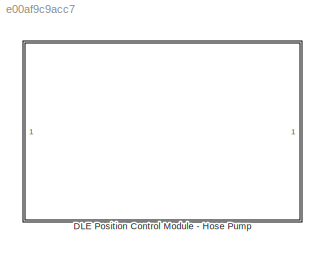
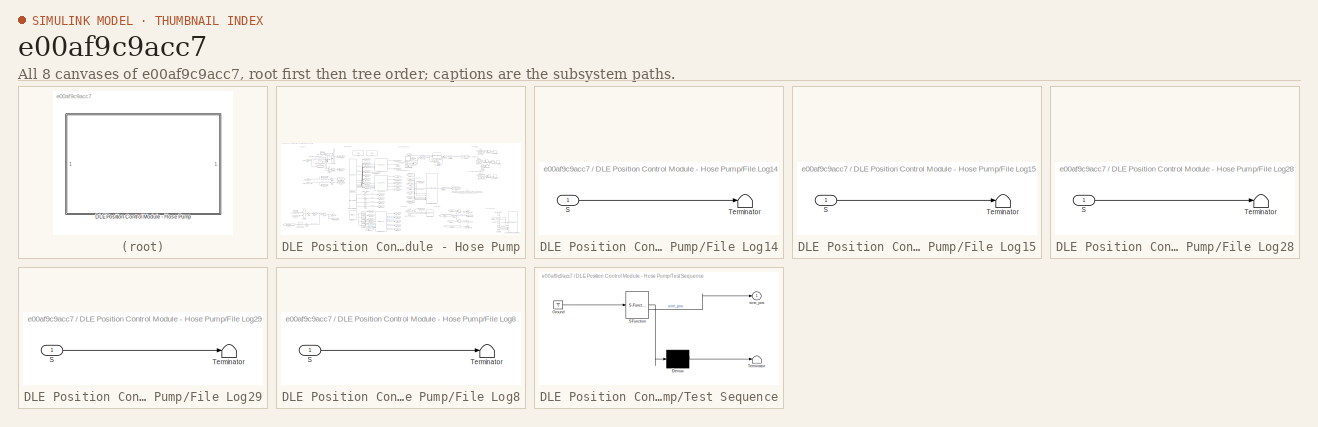
[diagram: thumbnail index - all 8 canvases of the model, root first then tree order]
MODEL slx_e00af9c9acc7
KIND library
CONFIG AbsTol = auto
CONFIG EnableMultiTasking = off
CONFIG FixedStep = auto
CONFIG MaxStep = auto
CONFIG MinStep = auto
CONFIG RelTol = 1e-3
CONFIG SampleTimeConstraint = Unconstrained
CONFIG SolverName = VariableStepAuto
CONFIG StartTime = 0.0
CONFIG StopTime = 10.0
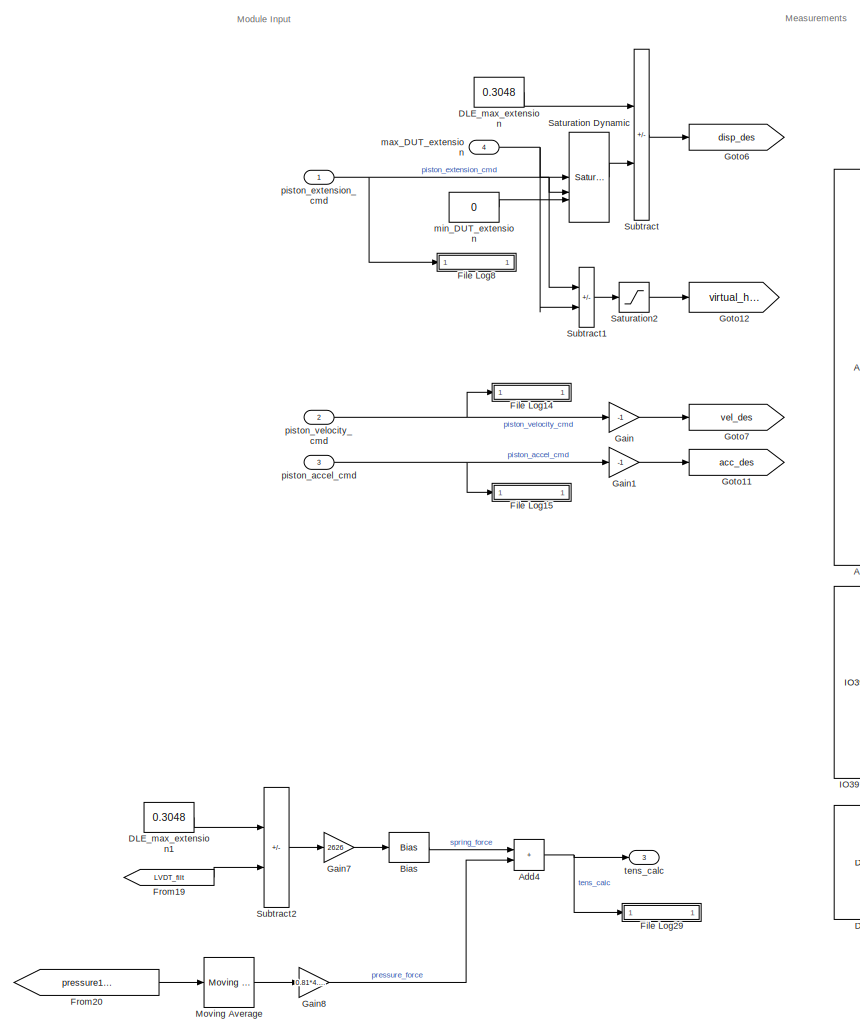
[diagram: DLE Position Control Module - Hose Pump - part 1/5, left side, full height]
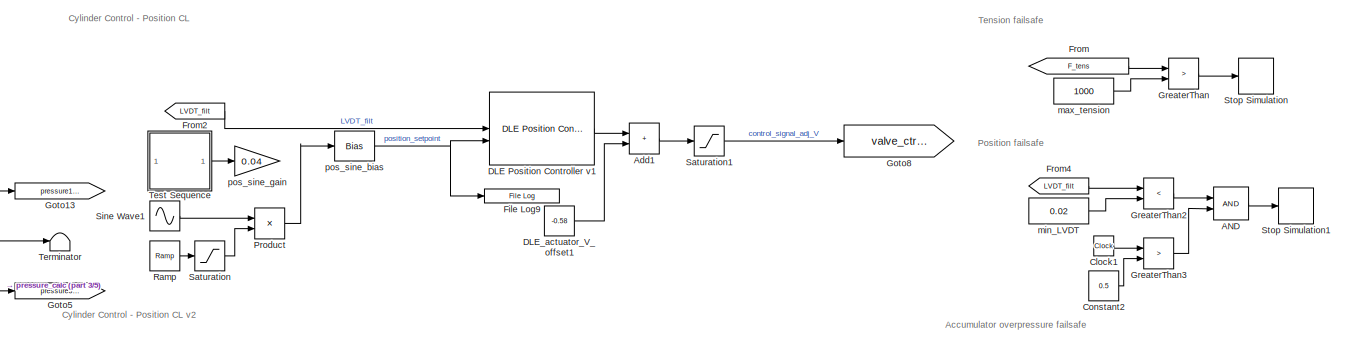
[diagram: DLE Position Control Module - Hose Pump - part 2/5, top right region]
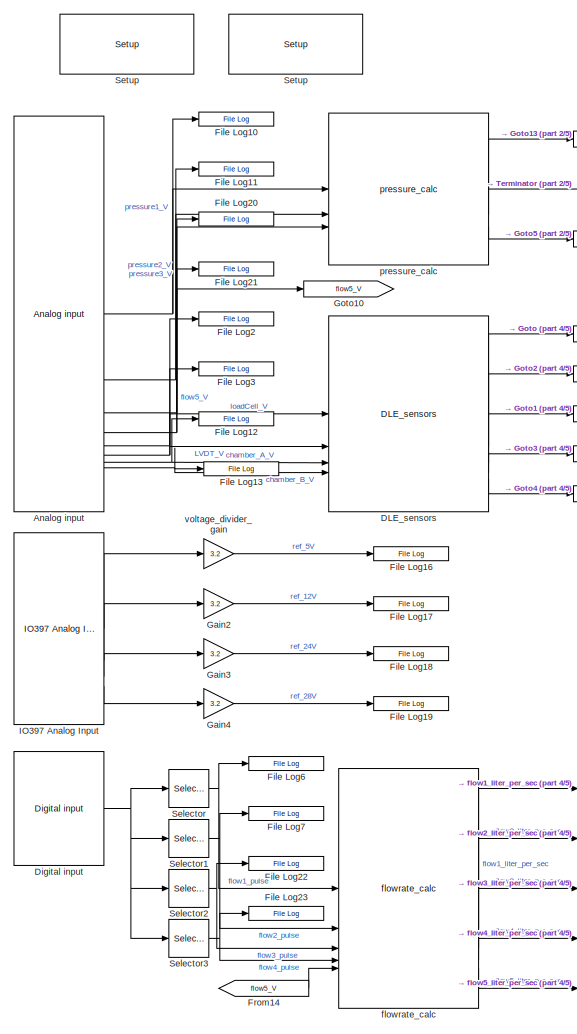
[diagram: DLE Position Control Module - Hose Pump - part 3/5, center side, full height]
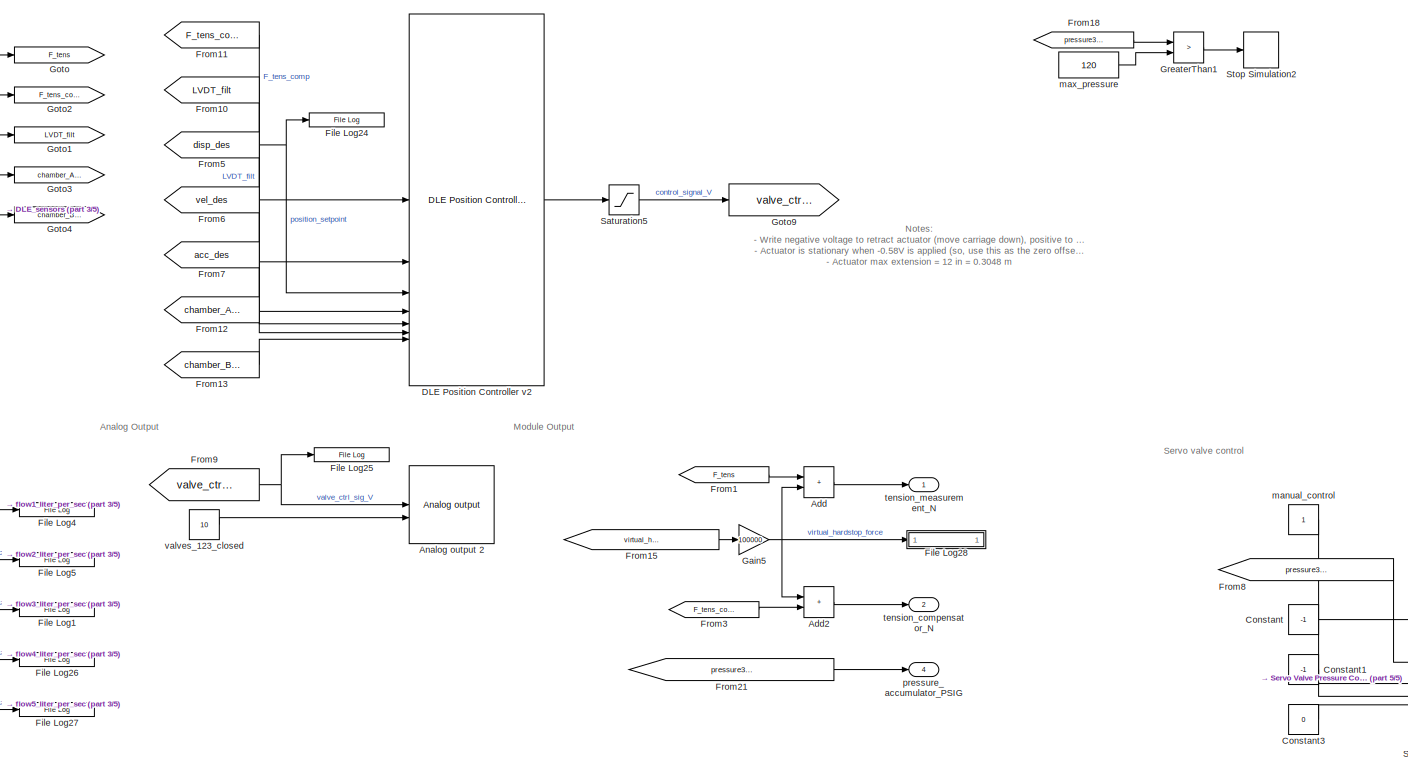
[diagram: DLE Position Control Module - Hose Pump - part 4/5, middle right region]
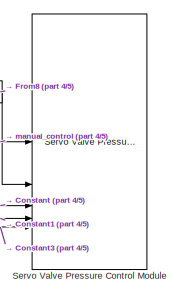
[diagram: DLE Position Control Module - Hose Pump - part 5/5, bottom right region]
BLOCK [SubSystem] DLE Position Control Module - Hose Pump
BLOCK [Logic] DLE Position Control Module - Hose Pump/AND
  AllPortsSameDT = off
  OutDataTypeStr = boolean
BLOCK [Sum] DLE Position Control Module - Hose Pump/Add
  IconShape = rectangular
BLOCK [Sum] DLE Position Control Module - Hose Pump/Add1
  Commented = on
  IconShape = rectangular
BLOCK [Sum] DLE Position Control Module - Hose Pump/Add2
  IconShape = rectangular
BLOCK [Sum] DLE Position Control Module - Hose Pump/Add4
  Commented = on
  IconShape = rectangular
BLOCK [Reference] DLE Position Control Module - Hose Pump/Analog input   REF=speedgoatlib_IO191/Analog input 
  SourceBlock = speedgoatlib_IO191/Analog input
  SourceProductName = IO191
  SourceType = ad_IO191
BLOCK [Reference] DLE Position Control Module - Hose Pump/Analog output 2  REF=speedgoatlib_IO191/Analog output 
  SourceBlock = speedgoatlib_IO191/Analog output
  SourceProductName = IO191
  SourceType = da_IO191
BLOCK [Bias] DLE Position Control Module - Hose Pump/Bias
  Bias = 185
  Commented = on
  SaturateOnIntegerOverflow = off
BLOCK [Clock] DLE Position Control Module - Hose Pump/Clock1
BLOCK [Constant] DLE Position Control Module - Hose Pump/Constant
  Commented = on
  Value = -1
BLOCK [Constant] DLE Position Control Module - Hose Pump/Constant1
  Commented = on
  Value = -1
BLOCK [Constant] DLE Position Control Module - Hose Pump/Constant2
  Value = 0.5
BLOCK [Constant] DLE Position Control Module - Hose Pump/Constant3
  Commented = on
  Value = 0
BLOCK [Reference] DLE Position Control Module - Hose Pump/DLE Position Controller v1  REF=DLE_position_controller_v1/DLE Position Controller v1
  Commented = on
  SourceBlock = DLE_position_controller_v1/DLE Position Controller v1
  SourceType = SubSystem
BLOCK [Reference] DLE Position Control Module - Hose Pump/DLE Position Controller v2  REF=DLE_position_controller_v2/DLE Position Controller v2
  SourceBlock = DLE_position_controller_v2/DLE Position Controller v2
  SourceType = SubSystem
BLOCK [Constant] DLE Position Control Module - Hose Pump/DLE_actuator_V_offset1
  Commented = on
  Value = -0.58
BLOCK [Constant] DLE Position Control Module - Hose Pump/DLE_max_extension
  Value = 0.3048
BLOCK [Constant] DLE Position Control Module - Hose Pump/DLE_max_extension1
  Commented = on
  Value = 0.3048
BLOCK [Reference] DLE Position Control Module - Hose Pump/DLE_sensors  REF=sensor_conversion_blocks/DLE_sensors  (lib defined in slx_31147057ccca)
  SourceBlock = sensor_conversion_blocks/DLE_sensors
  SourceType = SubSystem
BLOCK [Reference] DLE Position Control Module - Hose Pump/Digital input   REF=speedgoatlib_IO191/Digital input 
  SourceBlock = speedgoatlib_IO191/Digital input
  SourceProductName = IO191
  SourceType = di_IO191
BLOCK [Reference] DLE Position Control Module - Hose Pump/File Log1  REF=slrealtimeloglib/File Log
  SourceBlock = slrealtimeloglib/File Log
  SourceType = slrealtimeloggingblock
BLOCK [Reference] DLE Position Control Module - Hose Pump/File Log10  REF=slrealtimeloglib/File Log
  SourceBlock = slrealtimeloglib/File Log
  SourceType = slrealtimeloggingblock
BLOCK [Reference] DLE Position Control Module - Hose Pump/File Log11  REF=slrealtimeloglib/File Log
  SourceBlock = slrealtimeloglib/File Log
  SourceType = slrealtimeloggingblock
BLOCK [Reference] DLE Position Control Module - Hose Pump/File Log12  REF=slrealtimeloglib/File Log
  SourceBlock = slrealtimeloglib/File Log
  SourceType = slrealtimeloggingblock
BLOCK [Reference] DLE Position Control Module - Hose Pump/File Log13  REF=slrealtimeloglib/File Log
  SourceBlock = slrealtimeloglib/File Log
  SourceType = slrealtimeloggingblock
BLOCK [SubSystem] DLE Position Control Module - Hose Pump/File Log14
  MaskHideContents = on
BLOCK [Inport] DLE Position Control Module - Hose Pump/File Log14/S
BLOCK [Terminator] DLE Position Control Module - Hose Pump/File Log14/Terminator
BLOCK [SubSystem] DLE Position Control Module - Hose Pump/File Log15
  MaskHideContents = on
BLOCK [Inport] DLE Position Control Module - Hose Pump/File Log15/S
BLOCK [Terminator] DLE Position Control Module - Hose Pump/File Log15/Terminator
BLOCK [Reference] DLE Position Control Module - Hose Pump/File Log16  REF=slrealtimeloglib/File Log
  SourceBlock = slrealtimeloglib/File Log
  SourceType = slrealtimeloggingblock
BLOCK [Reference] DLE Position Control Module - Hose Pump/File Log17  REF=slrealtimeloglib/File Log
  SourceBlock = slrealtimeloglib/File Log
  SourceType = slrealtimeloggingblock
BLOCK [Reference] DLE Position Control Module - Hose Pump/File Log18  REF=slrealtimeloglib/File Log
  SourceBlock = slrealtimeloglib/File Log
  SourceType = slrealtimeloggingblock
BLOCK [Reference] DLE Position Control Module - Hose Pump/File Log19  REF=slrealtimeloglib/File Log
  SourceBlock = slrealtimeloglib/File Log
  SourceType = slrealtimeloggingblock
BLOCK [Reference] DLE Position Control Module - Hose Pump/File Log2  REF=slrealtimeloglib/File Log
  SourceBlock = slrealtimeloglib/File Log
  SourceType = slrealtimeloggingblock
BLOCK [Reference] DLE Position Control Module - Hose Pump/File Log20  REF=slrealtimeloglib/File Log
  SourceBlock = slrealtimeloglib/File Log
  SourceType = slrealtimeloggingblock
BLOCK [Reference] DLE Position Control Module - Hose Pump/File Log21  REF=slrealtimeloglib/File Log
  SourceBlock = slrealtimeloglib/File Log
  SourceType = slrealtimeloggingblock
BLOCK [Reference] DLE Position Control Module - Hose Pump/File Log22  REF=slrealtimeloglib/File Log
  SourceBlock = slrealtimeloglib/File Log
  SourceType = slrealtimeloggingblock
BLOCK [Reference] DLE Position Control Module - Hose Pump/File Log23  REF=slrealtimeloglib/File Log
  SourceBlock = slrealtimeloglib/File Log
  SourceType = slrealtimeloggingblock
BLOCK [Reference] DLE Position Control Module - Hose Pump/File Log24  REF=slrealtimeloglib/File Log
  SourceBlock = slrealtimeloglib/File Log
  SourceType = slrealtimeloggingblock
BLOCK [Reference] DLE Position Control Module - Hose Pump/File Log25  REF=slrealtimeloglib/File Log
  SourceBlock = slrealtimeloglib/File Log
  SourceType = slrealtimeloggingblock
BLOCK [Reference] DLE Position Control Module - Hose Pump/File Log26  REF=slrealtimeloglib/File Log
  SourceBlock = slrealtimeloglib/File Log
  SourceType = slrealtimeloggingblock
BLOCK [Reference] DLE Position Control Module - Hose Pump/File Log27  REF=slrealtimeloglib/File Log
  SourceBlock = slrealtimeloglib/File Log
  SourceType = slrealtimeloggingblock
BLOCK [SubSystem] DLE Position Control Module - Hose Pump/File Log28
  MaskHideContents = on
BLOCK [Inport] DLE Position Control Module - Hose Pump/File Log28/S
BLOCK [Terminator] DLE Position Control Module - Hose Pump/File Log28/Terminator
BLOCK [SubSystem] DLE Position Control Module - Hose Pump/File Log29
  Commented = on
  MaskHideContents = on
BLOCK [Inport] DLE Position Control Module - Hose Pump/File Log29/S
BLOCK [Terminator] DLE Position Control Module - Hose Pump/File Log29/Terminator
BLOCK [Reference] DLE Position Control Module - Hose Pump/File Log3  REF=slrealtimeloglib/File Log
  SourceBlock = slrealtimeloglib/File Log
  SourceType = slrealtimeloggingblock
BLOCK [Reference] DLE Position Control Module - Hose Pump/File Log4  REF=slrealtimeloglib/File Log
  SourceBlock = slrealtimeloglib/File Log
  SourceType = slrealtimeloggingblock
BLOCK [Reference] DLE Position Control Module - Hose Pump/File Log5  REF=slrealtimeloglib/File Log
  SourceBlock = slrealtimeloglib/File Log
  SourceType = slrealtimeloggingblock
BLOCK [Reference] DLE Position Control Module - Hose Pump/File Log6  REF=slrealtimeloglib/File Log
  SourceBlock = slrealtimeloglib/File Log
  SourceType = slrealtimeloggingblock
BLOCK [Reference] DLE Position Control Module - Hose Pump/File Log7  REF=slrealtimeloglib/File Log
  SourceBlock = slrealtimeloglib/File Log
  SourceType = slrealtimeloggingblock
BLOCK [SubSystem] DLE Position Control Module - Hose Pump/File Log8
  MaskHideContents = on
BLOCK [Inport] DLE Position Control Module - Hose Pump/File Log8/S
BLOCK [Terminator] DLE Position Control Module - Hose Pump/File Log8/Terminator
BLOCK [Reference] DLE Position Control Module - Hose Pump/File Log9  REF=slrealtimeloglib/File Log
  Commented = on
  SourceBlock = slrealtimeloglib/File Log
  SourceType = slrealtimeloggingblock
BLOCK [From] DLE Position Control Module - Hose Pump/From
  GotoTag = F_tens
BLOCK [From] DLE Position Control Module - Hose Pump/From1
  GotoTag = F_tens
BLOCK [From] DLE Position Control Module - Hose Pump/From10
  GotoTag = LVDT_filt
BLOCK [From] DLE Position Control Module - Hose Pump/From11
  GotoTag = F_tens_comp
BLOCK [From] DLE Position Control Module - Hose Pump/From12
  GotoTag = chamber_A_PSI
BLOCK [From] DLE Position Control Module - Hose Pump/From13
  GotoTag = chamber_B_PSI
BLOCK [From] DLE Position Control Module - Hose Pump/From14
  GotoTag = flow5_V
BLOCK [From] DLE Position Control Module - Hose Pump/From15
  GotoTag = virtual_hardstop_extension
BLOCK [From] DLE Position Control Module - Hose Pump/From18
  GotoTag = pressure3_accumulator_PSIG
BLOCK [From] DLE Position Control Module - Hose Pump/From19
  Commented = on
  GotoTag = LVDT_filt
BLOCK [From] DLE Position Control Module - Hose Pump/From2
  Commented = on
  GotoTag = LVDT_filt
BLOCK [From] DLE Position Control Module - Hose Pump/From20
  Commented = on
  GotoTag = pressure1_cylinder_PSIG
BLOCK [From] DLE Position Control Module - Hose Pump/From21
  GotoTag = pressure3_accumulator_PSIG
BLOCK [From] DLE Position Control Module - Hose Pump/From3
  GotoTag = F_tens_comp
BLOCK [From] DLE Position Control Module - Hose Pump/From4
  GotoTag = LVDT_filt
BLOCK [From] DLE Position Control Module - Hose Pump/From5
  GotoTag = disp_des
BLOCK [From] DLE Position Control Module - Hose Pump/From6
  GotoTag = vel_des
BLOCK [From] DLE Position Control Module - Hose Pump/From7
  GotoTag = acc_des
BLOCK [From] DLE Position Control Module - Hose Pump/From8
  Commented = on
  GotoTag = pressure3_accumulator_PSIG
BLOCK [From] DLE Position Control Module - Hose Pump/From9
  GotoTag = valve_ctrl_sig_V
BLOCK [Gain] DLE Position Control Module - Hose Pump/Gain
  Gain = -1
BLOCK [Gain] DLE Position Control Module - Hose Pump/Gain1
  Gain = -1
BLOCK [Gain] DLE Position Control Module - Hose Pump/Gain2
  Gain = 3.2
BLOCK [Gain] DLE Position Control Module - Hose Pump/Gain3
  Gain = 3.2
BLOCK [Gain] DLE Position Control Module - Hose Pump/Gain4
  Gain = 3.2
BLOCK [Gain] DLE Position Control Module - Hose Pump/Gain5
  Gain = 100000
BLOCK [Gain] DLE Position Control Module - Hose Pump/Gain7
  Commented = on
  Gain = 2626
BLOCK [Gain] DLE Position Control Module - Hose Pump/Gain8
  Commented = on
  Gain = 0.81*4.448
BLOCK [Goto] DLE Position Control Module - Hose Pump/Goto
  GotoTag = F_tens
BLOCK [Goto] DLE Position Control Module - Hose Pump/Goto1
  GotoTag = LVDT_filt
BLOCK [Goto] DLE Position Control Module - Hose Pump/Goto10
  GotoTag = flow5_V
BLOCK [Goto] DLE Position Control Module - Hose Pump/Goto11
  GotoTag = acc_des
BLOCK [Goto] DLE Position Control Module - Hose Pump/Goto12
  Commented = on
  GotoTag = virtual_hardstop_extension
BLOCK [Goto] DLE Position Control Module - Hose Pump/Goto13
  GotoTag = pressure1_cylinder_PSIG
BLOCK [Goto] DLE Position Control Module - Hose Pump/Goto2
  GotoTag = F_tens_comp
BLOCK [Goto] DLE Position Control Module - Hose Pump/Goto3
  GotoTag = chamber_A_PSI
BLOCK [Goto] DLE Position Control Module - Hose Pump/Goto4
  GotoTag = chamber_B_PSI
BLOCK [Goto] DLE Position Control Module - Hose Pump/Goto5
  GotoTag = pressure3_accumulator_PSIG
BLOCK [Goto] DLE Position Control Module - Hose Pump/Goto6
  GotoTag = disp_des
BLOCK [Goto] DLE Position Control Module - Hose Pump/Goto7
  GotoTag = vel_des
BLOCK [Goto] DLE Position Control Module - Hose Pump/Goto8
  Commented = on
  GotoTag = valve_ctrl_sig_V
BLOCK [Goto] DLE Position Control Module - Hose Pump/Goto9
  GotoTag = valve_ctrl_sig_V
BLOCK [RelationalOperator] DLE Position Control Module - Hose Pump/GreaterThan
  InputSameDT = off
  Operator = >
  OutDataTypeStr = boolean
  RndMeth = Simplest
BLOCK [RelationalOperator] DLE Position Control Module - Hose Pump/GreaterThan1
  InputSameDT = off
  Operator = >
  OutDataTypeStr = boolean
  RndMeth = Simplest
BLOCK [RelationalOperator] DLE Position Control Module - Hose Pump/GreaterThan2
  InputSameDT = off
  Operator = <
  OutDataTypeStr = boolean
  RndMeth = Simplest
BLOCK [RelationalOperator] DLE Position Control Module - Hose Pump/GreaterThan3
  InputSameDT = off
  Operator = >
  OutDataTypeStr = boolean
  RndMeth = Simplest
BLOCK [Reference] DLE Position Control Module - Hose Pump/IO397 Analog Input  REF=speedgoatlib_fpga_analog_io/IO397/IO397 Analog Input
  SourceBlock = speedgoatlib_fpga_analog_io/IO397/IO397 Analog Input
  SourceProductName = Analog IO
  SourceType = ad_IO397
BLOCK [Reference] DLE Position Control Module - Hose Pump/Moving Average  REF=dspstat3/Moving
Average
  Commented = on
  SourceBlock = dspstat3/Moving\nAverage
  SourceType = dsp.simulink.MovingAverage
BLOCK [Product] DLE Position Control Module - Hose Pump/Product
  Commented = on
BLOCK [Reference] DLE Position Control Module - Hose Pump/Ramp  REF=simulink/Sources/Ramp
  Commented = on
  SourceBlock = simulink/Sources/Ramp
  SourceType = Ramp
BLOCK [Saturate] DLE Position Control Module - Hose Pump/Saturation
  Commented = on
  LowerLimit = 0
  UpperLimit = 1
BLOCK [Reference] DLE Position Control Module - Hose Pump/Saturation Dynamic  REF=simulink/Discontinuities/Saturation
Dynamic
  SourceBlock = simulink/Discontinuities/Saturation\nDynamic
  SourceType = Saturation Dynamic
BLOCK [Saturate] DLE Position Control Module - Hose Pump/Saturation1
  Commented = on
  LowerLimit = -10
  UpperLimit = 10
BLOCK [Saturate] DLE Position Control Module - Hose Pump/Saturation2
  LowerLimit = 0
  UpperLimit = inf
BLOCK [Saturate] DLE Position Control Module - Hose Pump/Saturation5
  LowerLimit = -10
  UpperLimit = 10
BLOCK [Selector] DLE Position Control Module - Hose Pump/Selector
  IndexOptions = Index vector (dialog)
  Indices = 1
  InputPortWidth = 16
  OutputSizes = 1
BLOCK [Selector] DLE Position Control Module - Hose Pump/Selector1
  IndexOptions = Index vector (dialog)
  Indices = 2
  InputPortWidth = 16
  OutputSizes = 1
BLOCK [Selector] DLE Position Control Module - Hose Pump/Selector2
  IndexOptions = Index vector (dialog)
  Indices = 3
  InputPortWidth = 16
  OutputSizes = 1
BLOCK [Selector] DLE Position Control Module - Hose Pump/Selector3
  IndexOptions = Index vector (dialog)
  Indices = 4
  InputPortWidth = 16
  OutputSizes = 1
BLOCK [Reference] DLE Position Control Module - Hose Pump/Servo Valve Pressure Control Module  REF=servo_valve_pressure_control_module/Servo Valve Pressure Control Module  (lib defined in slx_62a98533b265)
  Commented = on
  SourceBlock = servo_valve_pressure_control_module/Servo Valve Pressure Control Module
  SourceType = SubSystem
BLOCK [Reference] DLE Position Control Module - Hose Pump/Setup  REF=speedgoatlib_fpga/Setup/Setup
  SourceBlock = speedgoatlib_fpga/Setup/Setup
  SourceProductName = IO3xx
  SourceType = setup_fpga_3
BLOCK [Reference] DLE Position Control Module - Hose Pump/Setup   REF=speedgoatlib_IO191/Setup 
  SourceBlock = speedgoatlib_IO191/Setup
  SourceProductName = IO191
  SourceType = setup_IO191
BLOCK [Sin] DLE Position Control Module - Hose Pump/Sine Wave1
  Amplitude = 0.04
  Commented = on
  Frequency = 2*pi/2
  SampleTime = 0
BLOCK [Stop] DLE Position Control Module - Hose Pump/Stop Simulation
BLOCK [Stop] DLE Position Control Module - Hose Pump/Stop Simulation1
BLOCK [Stop] DLE Position Control Module - Hose Pump/Stop Simulation2
BLOCK [Sum] DLE Position Control Module - Hose Pump/Subtract
  IconShape = rectangular
  Inputs = +-
BLOCK [Sum] DLE Position Control Module - Hose Pump/Subtract1
  IconShape = rectangular
  Inputs = +-
BLOCK [Sum] DLE Position Control Module - Hose Pump/Subtract2
  Commented = on
  IconShape = rectangular
  Inputs = +-
BLOCK [Terminator] DLE Position Control Module - Hose Pump/Terminator
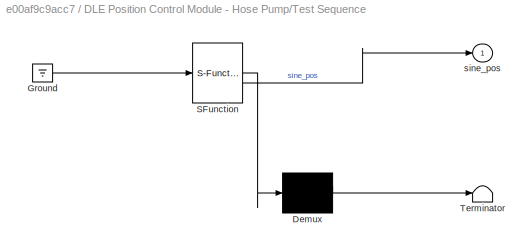
BLOCK [SubSystem] DLE Position Control Module - Hose Pump/Test Sequence
  Commented = on
  ErrorFcn = Stateflow.Translate.translate
  PermitHierarchicalResolution = ExplicitOnly
  SFBlockType = Test Sequence
  TreatAsAtomicUnit = on
BLOCK [Demux] DLE Position Control Module - Hose Pump/Test Sequence/ Demux 
  Outputs = 1
BLOCK [Ground] DLE Position Control Module - Hose Pump/Test Sequence/ Ground 
BLOCK [S-Function] DLE Position Control Module - Hose Pump/Test Sequence/ SFunction 
  EnableBusSupport = off
  FunctionName = sf_sfun
  PortCounts = [1 2]
  SFcnIsStateOwnerBlock = off
  SFunctionDeploymentMode = off
  Tag = Stateflow S-Function 4
BLOCK [Terminator] DLE Position Control Module - Hose Pump/Test Sequence/ Terminator 
BLOCK [Outport] DLE Position Control Module - Hose Pump/Test Sequence/sine_pos
BLOCK [Reference] DLE Position Control Module - Hose Pump/flowrate_calc  REF=sensor_conversion_blocks/flowrate_calc  (lib defined in slx_31147057ccca)
  SourceBlock = sensor_conversion_blocks/flowrate_calc
  SourceType = SubSystem
BLOCK [Constant] DLE Position Control Module - Hose Pump/manual_control
  Commented = on
  SampleTime = 0.0001
BLOCK [Inport] DLE Position Control Module - Hose Pump/max_DUT_extension
  Port = 4
BLOCK [Constant] DLE Position Control Module - Hose Pump/max_pressure
  Value = 120
BLOCK [Constant] DLE Position Control Module - Hose Pump/max_tension
  Value = 1000
BLOCK [Constant] DLE Position Control Module - Hose Pump/min_DUT_extension
  Value = 0
BLOCK [Constant] DLE Position Control Module - Hose Pump/min_LVDT
  Value = 0.02
BLOCK [Inport] DLE Position Control Module - Hose Pump/piston_accel_cmd
  Port = 3
BLOCK [Inport] DLE Position Control Module - Hose Pump/piston_extension_cmd
BLOCK [Inport] DLE Position Control Module - Hose Pump/piston_velocity_cmd
  Port = 2
BLOCK [Bias] DLE Position Control Module - Hose Pump/pos_sine_bias
  Bias = 0.24
  Commented = on
  SaturateOnIntegerOverflow = off
BLOCK [Gain] DLE Position Control Module - Hose Pump/pos_sine_gain
  Commented = on
  Gain = 0.04
BLOCK [Outport] DLE Position Control Module - Hose Pump/pressure_accumulator_PSIG
  Port = 4
BLOCK [Reference] DLE Position Control Module - Hose Pump/pressure_calc  REF=sensor_conversion_blocks/pressure_calc  (lib defined in slx_31147057ccca)
  SourceBlock = sensor_conversion_blocks/pressure_calc
  SourceType = SubSystem
BLOCK [Outport] DLE Position Control Module - Hose Pump/tens_calc
  Port = 3
BLOCK [Outport] DLE Position Control Module - Hose Pump/tension_compensator_N
  Port = 2
BLOCK [Outport] DLE Position Control Module - Hose Pump/tension_measurement_N
BLOCK [Constant] DLE Position Control Module - Hose Pump/valves_123_closed
  Value = 10
BLOCK [Gain] DLE Position Control Module - Hose Pump/voltage_divider_gain
  Gain = 3.2
ANNOTATION DLE Position Control Module - Hose Pump: Accumulator overpressure failsafe
ANNOTATION DLE Position Control Module - Hose Pump: Analog Output
ANNOTATION DLE Position Control Module - Hose Pump: Cylinder Control - Position CL
ANNOTATION DLE Position Control Module - Hose Pump: Cylinder Control - Position CL v2
ANNOTATION DLE Position Control Module - Hose Pump: Measurements
ANNOTATION DLE Position Control Module - Hose Pump: Module Input
ANNOTATION DLE Position Control Module - Hose Pump: Module Output
ANNOTATION DLE Position Control Module - Hose Pump: Notes: - Write negative voltage to retract actuator (move carriage down), positive to extend - Actuator is stationary when -0.58V is applied (so, use this as the zero offset) - Actuator max extension = 12 in = 0.3048 m
ANNOTATION DLE Position Control Module - Hose Pump: Position failsafe
ANNOTATION DLE Position Control Module - Hose Pump: Servo valve control
ANNOTATION DLE Position Control Module - Hose Pump: Tension failsafe
LINE DLE Position Control Module - Hose Pump/AND:1 -> DLE Position Control Module - Hose Pump/Stop Simulation1:1
LINE DLE Position Control Module - Hose Pump/Add1:1 -> DLE Position Control Module - Hose Pump/Saturation1:1
LINE DLE Position Control Module - Hose Pump/Add2:1 -> DLE Position Control Module - Hose Pump/tension_compensator_N:1
NET DLE Position Control Module - Hose Pump/Add4:1 -> DLE Position Control Module - Hose Pump/File Log29:1, DLE Position Control Module - Hose Pump/tens_calc:1
LINE DLE Position Control Module - Hose Pump/Add:1 -> DLE Position Control Module - Hose Pump/tension_measurement_N:1
NET DLE Position Control Module - Hose Pump/Analog input :1 -> DLE Position Control Module - Hose Pump/File Log10:1, DLE Position Control Module - Hose Pump/pressure_calc:1
NET DLE Position Control Module - Hose Pump/Analog input :2 -> DLE Position Control Module - Hose Pump/File Log11:1, DLE Position Control Module - Hose Pump/pressure_calc:2
NET DLE Position Control Module - Hose Pump/Analog input :3 -> DLE Position Control Module - Hose Pump/File Log20:1, DLE Position Control Module - Hose Pump/pressure_calc:3
NET DLE Position Control Module - Hose Pump/Analog input :4 -> DLE Position Control Module - Hose Pump/File Log21:1, DLE Position Control Module - Hose Pump/Goto10:1
NET DLE Position Control Module - Hose Pump/Analog input :5 -> DLE Position Control Module - Hose Pump/DLE_sensors:1, DLE Position Control Module - Hose Pump/File Log2:1
NET DLE Position Control Module - Hose Pump/Analog input :6 -> DLE Position Control Module - Hose Pump/DLE_sensors:2, DLE Position Control Module - Hose Pump/File Log3:1
NET DLE Position Control Module - Hose Pump/Analog input :7 -> DLE Position Control Module - Hose Pump/DLE_sensors:3, DLE Position Control Module - Hose Pump/File Log12:1
NET DLE Position Control Module - Hose Pump/Analog input :8 -> DLE Position Control Module - Hose Pump/DLE_sensors:4, DLE Position Control Module - Hose Pump/File Log13:1
LINE DLE Position Control Module - Hose Pump/Bias:1 -> DLE Position Control Module - Hose Pump/Add4:1
LINE DLE Position Control Module - Hose Pump/Clock1:1 -> DLE Position Control Module - Hose Pump/GreaterThan3:1
LINE DLE Position Control Module - Hose Pump/Constant1:1 -> DLE Position Control Module - Hose Pump/Servo Valve Pressure Control Module:4
LINE DLE Position Control Module - Hose Pump/Constant2:1 -> DLE Position Control Module - Hose Pump/GreaterThan3:2
LINE DLE Position Control Module - Hose Pump/Constant3:1 -> DLE Position Control Module - Hose Pump/Servo Valve Pressure Control Module:5
LINE DLE Position Control Module - Hose Pump/Constant:1 -> DLE Position Control Module - Hose Pump/Servo Valve Pressure Control Module:3
LINE DLE Position Control Module - Hose Pump/DLE Position Controller v1:1 -> DLE Position Control Module - Hose Pump/Add1:1
LINE DLE Position Control Module - Hose Pump/DLE Position Controller v2:1 -> DLE Position Control Module - Hose Pump/Saturation5:1
LINE DLE Position Control Module - Hose Pump/DLE_actuator_V_offset1:1 -> DLE Position Control Module - Hose Pump/Add1:2
LINE DLE Position Control Module - Hose Pump/DLE_max_extension1:1 -> DLE Position Control Module - Hose Pump/Subtract2:1
LINE DLE Position Control Module - Hose Pump/DLE_max_extension:1 -> DLE Position Control Module - Hose Pump/Subtract:1
LINE DLE Position Control Module - Hose Pump/DLE_sensors:1 -> DLE Position Control Module - Hose Pump/Goto:1
LINE DLE Position Control Module - Hose Pump/DLE_sensors:2 -> DLE Position Control Module - Hose Pump/Goto2:1
LINE DLE Position Control Module - Hose Pump/DLE_sensors:3 -> DLE Position Control Module - Hose Pump/Goto1:1
LINE DLE Position Control Module - Hose Pump/DLE_sensors:4 -> DLE Position Control Module - Hose Pump/Goto3:1
LINE DLE Position Control Module - Hose Pump/DLE_sensors:5 -> DLE Position Control Module - Hose Pump/Goto4:1
NET DLE Position Control Module - Hose Pump/Digital input :1 -> DLE Position Control Module - Hose Pump/Selector1:1, DLE Position Control Module - Hose Pump/Selector2:1, DLE Position Control Module - Hose Pump/Selector3:1, DLE Position Control Module - Hose Pump/Selector:1
LINE DLE Position Control Module - Hose Pump/From10:1 -> DLE Position Control Module - Hose Pump/DLE Position Controller v2:2
LINE DLE Position Control Module - Hose Pump/From11:1 -> DLE Position Control Module - Hose Pump/DLE Position Controller v2:1
LINE DLE Position Control Module - Hose Pump/From12:1 -> DLE Position Control Module - Hose Pump/DLE Position Controller v2:6
LINE DLE Position Control Module - Hose Pump/From13:1 -> DLE Position Control Module - Hose Pump/DLE Position Controller v2:7
LINE DLE Position Control Module - Hose Pump/From14:1 -> DLE Position Control Module - Hose Pump/flowrate_calc:5
LINE DLE Position Control Module - Hose Pump/From15:1 -> DLE Position Control Module - Hose Pump/Gain5:1
LINE DLE Position Control Module - Hose Pump/From18:1 -> DLE Position Control Module - Hose Pump/GreaterThan1:1
LINE DLE Position Control Module - Hose Pump/From19:1 -> DLE Position Control Module - Hose Pump/Subtract2:2
LINE DLE Position Control Module - Hose Pump/From1:1 -> DLE Position Control Module - Hose Pump/Add:1
LINE DLE Position Control Module - Hose Pump/From20:1 -> DLE Position Control Module - Hose Pump/Moving Average:1
LINE DLE Position Control Module - Hose Pump/From21:1 -> DLE Position Control Module - Hose Pump/pressure_accumulator_PSIG:1
LINE DLE Position Control Module - Hose Pump/From2:1 -> DLE Position Control Module - Hose Pump/DLE Position Controller v1:1
LINE DLE Position Control Module - Hose Pump/From3:1 -> DLE Position Control Module - Hose Pump/Add2:2
LINE DLE Position Control Module - Hose Pump/From4:1 -> DLE Position Control Module - Hose Pump/GreaterThan2:1
NET DLE Position Control Module - Hose Pump/From5:1 -> DLE Position Control Module - Hose Pump/DLE Position Controller v2:3, DLE Position Control Module - Hose Pump/File Log24:1
LINE DLE Position Control Module - Hose Pump/From6:1 -> DLE Position Control Module - Hose Pump/DLE Position Controller v2:4
LINE DLE Position Control Module - Hose Pump/From7:1 -> DLE Position Control Module - Hose Pump/DLE Position Controller v2:5
LINE DLE Position Control Module - Hose Pump/From8:1 -> DLE Position Control Module - Hose Pump/Servo Valve Pressure Control Module:2
NET DLE Position Control Module - Hose Pump/From9:1 -> DLE Position Control Module - Hose Pump/Analog output 2:1, DLE Position Control Module - Hose Pump/File Log25:1
LINE DLE Position Control Module - Hose Pump/From:1 -> DLE Position Control Module - Hose Pump/GreaterThan:1
LINE DLE Position Control Module - Hose Pump/Gain1:1 -> DLE Position Control Module - Hose Pump/Goto11:1
LINE DLE Position Control Module - Hose Pump/Gain2:1 -> DLE Position Control Module - Hose Pump/File Log17:1
LINE DLE Position Control Module - Hose Pump/Gain3:1 -> DLE Position Control Module - Hose Pump/File Log18:1
LINE DLE Position Control Module - Hose Pump/Gain4:1 -> DLE Position Control Module - Hose Pump/File Log19:1
NET DLE Position Control Module - Hose Pump/Gain5:1 -> DLE Position Control Module - Hose Pump/Add2:1, DLE Position Control Module - Hose Pump/Add:2, DLE Position Control Module - Hose Pump/File Log28:1
LINE DLE Position Control Module - Hose Pump/Gain7:1 -> DLE Position Control Module - Hose Pump/Bias:1
LINE DLE Position Control Module - Hose Pump/Gain8:1 -> DLE Position Control Module - Hose Pump/Add4:2
LINE DLE Position Control Module - Hose Pump/Gain:1 -> DLE Position Control Module - Hose Pump/Goto7:1
LINE DLE Position Control Module - Hose Pump/GreaterThan1:1 -> DLE Position Control Module - Hose Pump/Stop Simulation2:1
LINE DLE Position Control Module - Hose Pump/GreaterThan2:1 -> DLE Position Control Module - Hose Pump/AND:1
LINE DLE Position Control Module - Hose Pump/GreaterThan3:1 -> DLE Position Control Module - Hose Pump/AND:2
LINE DLE Position Control Module - Hose Pump/GreaterThan:1 -> DLE Position Control Module - Hose Pump/Stop Simulation:1
LINE DLE Position Control Module - Hose Pump/IO397 Analog Input:1 -> DLE Position Control Module - Hose Pump/voltage_divider_gain:1
LINE DLE Position Control Module - Hose Pump/IO397 Analog Input:2 -> DLE Position Control Module - Hose Pump/Gain2:1
LINE DLE Position Control Module - Hose Pump/IO397 Analog Input:3 -> DLE Position Control Module - Hose Pump/Gain3:1
LINE DLE Position Control Module - Hose Pump/IO397 Analog Input:4 -> DLE Position Control Module - Hose Pump/Gain4:1
LINE DLE Position Control Module - Hose Pump/Moving Average:1 -> DLE Position Control Module - Hose Pump/Gain8:1
LINE DLE Position Control Module - Hose Pump/Product:1 -> DLE Position Control Module - Hose Pump/pos_sine_bias:1
LINE DLE Position Control Module - Hose Pump/Ramp:1 -> DLE Position Control Module - Hose Pump/Saturation:1
LINE DLE Position Control Module - Hose Pump/Saturation Dynamic:1 -> DLE Position Control Module - Hose Pump/Subtract:2
LINE DLE Position Control Module - Hose Pump/Saturation1:1 -> DLE Position Control Module - Hose Pump/Goto8:1
LINE DLE Position Control Module - Hose Pump/Saturation2:1 -> DLE Position Control Module - Hose Pump/Goto12:1
LINE DLE Position Control Module - Hose Pump/Saturation5:1 -> DLE Position Control Module - Hose Pump/Goto9:1
LINE DLE Position Control Module - Hose Pump/Saturation:1 -> DLE Position Control Module - Hose Pump/Product:2
NET DLE Position Control Module - Hose Pump/Selector1:1 -> DLE Position Control Module - Hose Pump/File Log7:1, DLE Position Control Module - Hose Pump/flowrate_calc:2
NET DLE Position Control Module - Hose Pump/Selector2:1 -> DLE Position Control Module - Hose Pump/File Log22:1, DLE Position Control Module - Hose Pump/flowrate_calc:3
NET DLE Position Control Module - Hose Pump/Selector3:1 -> DLE Position Control Module - Hose Pump/File Log23:1, DLE Position Control Module - Hose Pump/flowrate_calc:4
NET DLE Position Control Module - Hose Pump/Selector:1 -> DLE Position Control Module - Hose Pump/File Log6:1, DLE Position Control Module - Hose Pump/flowrate_calc:1
LINE DLE Position Control Module - Hose Pump/Sine Wave1:1 -> DLE Position Control Module - Hose Pump/Product:1
LINE DLE Position Control Module - Hose Pump/Subtract1:1 -> DLE Position Control Module - Hose Pump/Saturation2:1
LINE DLE Position Control Module - Hose Pump/Subtract2:1 -> DLE Position Control Module - Hose Pump/Gain7:1
LINE DLE Position Control Module - Hose Pump/Subtract:1 -> DLE Position Control Module - Hose Pump/Goto6:1
LINE DLE Position Control Module - Hose Pump/Test Sequence:1 -> DLE Position Control Module - Hose Pump/pos_sine_gain:1
LINE DLE Position Control Module - Hose Pump/flowrate_calc:1 -> DLE Position Control Module - Hose Pump/File Log4:1
LINE DLE Position Control Module - Hose Pump/flowrate_calc:2 -> DLE Position Control Module - Hose Pump/File Log5:1
LINE DLE Position Control Module - Hose Pump/flowrate_calc:3 -> DLE Position Control Module - Hose Pump/File Log1:1
LINE DLE Position Control Module - Hose Pump/flowrate_calc:4 -> DLE Position Control Module - Hose Pump/File Log26:1
LINE DLE Position Control Module - Hose Pump/flowrate_calc:5 -> DLE Position Control Module - Hose Pump/File Log27:1
LINE DLE Position Control Module - Hose Pump/manual_control:1 -> DLE Position Control Module - Hose Pump/Servo Valve Pressure Control Module:1
NET DLE Position Control Module - Hose Pump/max_DUT_extension:1 -> DLE Position Control Module - Hose Pump/Saturation Dynamic:1, DLE Position Control Module - Hose Pump/Subtract1:2
LINE DLE Position Control Module - Hose Pump/max_pressure:1 -> DLE Position Control Module - Hose Pump/GreaterThan1:2
LINE DLE Position Control Module - Hose Pump/max_tension:1 -> DLE Position Control Module - Hose Pump/GreaterThan:2
LINE DLE Position Control Module - Hose Pump/min_DUT_extension:1 -> DLE Position Control Module - Hose Pump/Saturation Dynamic:3
LINE DLE Position Control Module - Hose Pump/min_LVDT:1 -> DLE Position Control Module - Hose Pump/GreaterThan2:2
NET DLE Position Control Module - Hose Pump/piston_accel_cmd:1 -> DLE Position Control Module - Hose Pump/File Log15:1, DLE Position Control Module - Hose Pump/Gain1:1
NET DLE Position Control Module - Hose Pump/piston_extension_cmd:1 -> DLE Position Control Module - Hose Pump/File Log8:1, DLE Position Control Module - Hose Pump/Saturation Dynamic:2, DLE Position Control Module - Hose Pump/Subtract1:1
NET DLE Position Control Module - Hose Pump/piston_velocity_cmd:1 -> DLE Position Control Module - Hose Pump/File Log14:1, DLE Position Control Module - Hose Pump/Gain:1
NET DLE Position Control Module - Hose Pump/pos_sine_bias:1 -> DLE Position Control Module - Hose Pump/DLE Position Controller v1:2, DLE Position Control Module - Hose Pump/File Log9:1
LINE DLE Position Control Module - Hose Pump/pressure_calc:1 -> DLE Position Control Module - Hose Pump/Goto13:1
LINE DLE Position Control Module - Hose Pump/pressure_calc:2 -> DLE Position Control Module - Hose Pump/Terminator:1
LINE DLE Position Control Module - Hose Pump/pressure_calc:3 -> DLE Position Control Module - Hose Pump/Goto5:1
LINE DLE Position Control Module - Hose Pump/valves_123_closed:1 -> DLE Position Control Module - Hose Pump/Analog output 2:2
LINE DLE Position Control Module - Hose Pump/voltage_divider_gain:1 -> DLE Position Control Module - Hose Pump/File Log16:1
note: NET lines group one-source signal fan-out (src -> all destinations, sorted); 1:1 wires keep LINE
CHART DLE Position Control Module - Hose Pump/Test Sequence states=6 transitions=6
  STATE_LABEL 'step_1\n% apply sine position gain and offset outside of sequence block\nsine_pos = 0;\n\n% 10 s ramp up, 30 s full, 10 s ramp down --> next sine'
  STATE_LABEL 'step_2 % after 10s startup period\nsine_start_timestamp = 10;\nfreq = 2*pi / 4; % starting frequency\n\nsine_t = t - sine_start_timestamp;\n\nramp_up_gain = min([1, 1/10*sine_t]);\nramp_down_gain = min([1, -1/10*sine_t + 5]);\n\nsine_pos = sin(freq * sine_t) * ramp_up_gain  * ramp_down_gain;'
  STATE_LABEL 'step_3\nsine_start_timestamp = 60;\nfreq = 2*pi / 3;\n\nsine_t = t - sine_start_timestamp;\n\nramp_up_gain = min([1, 1/10*sine_t]);\nramp_down_gain = min([1, -1/10*sine_t + 5]);\n\nsine_pos = sin(freq * sine_t) * ramp_up_gain  * ramp_down_gain;'
  STATE_LABEL 'step_4\nsine_start_timestamp = 110;\nfreq = 2*pi / 2;\n\nsine_t = t - sine_start_timestamp;\n\nramp_up_gain = min([1, 1/10*sine_t]);\nramp_down_gain = min([1, -1/10*sine_t + 5]);\n\nsine_pos = sin(freq * sine_t) * ramp_up_gain  * ramp_down_gain;'
  STATE_LABEL 'step_5\nsine_start_timestamp = 160;\nfreq = 2*pi / 1;\n\nsine_t = t - sine_start_timestamp;\n\nramp_up_gain = min([1, 1/10*sine_t]);\nramp_down_gain = min([1, -1/10*sine_t + 5]);\n\nsine_pos = sin(freq * sine_t) * ramp_up_gain  * ramp_down_gain;'
  STATE_LABEL 'step_6\nsine_pos = 0;'
CHART  states=0 transitions=0
